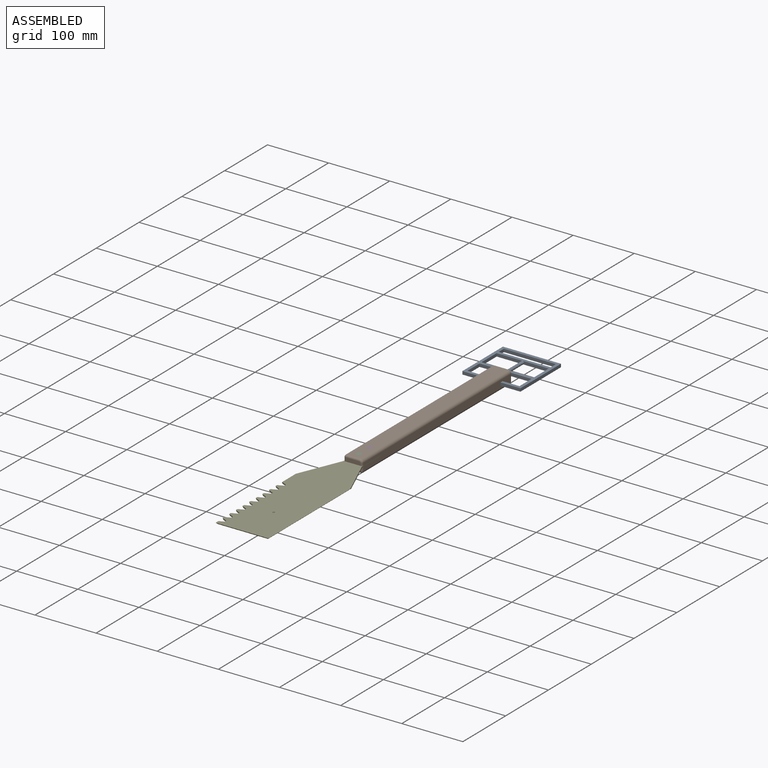
[diagram: assembled view]
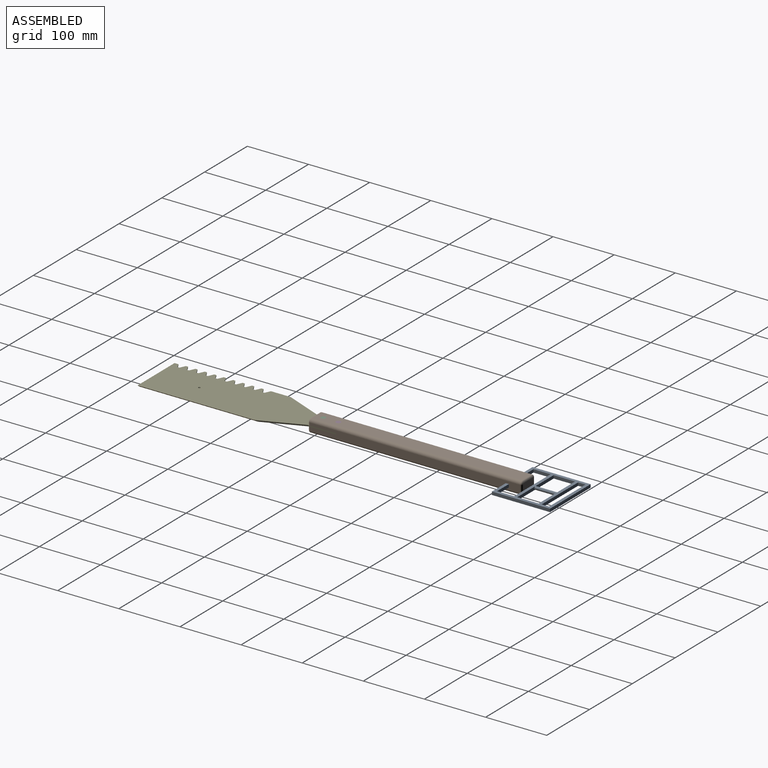
[diagram: assembled view, second angle]
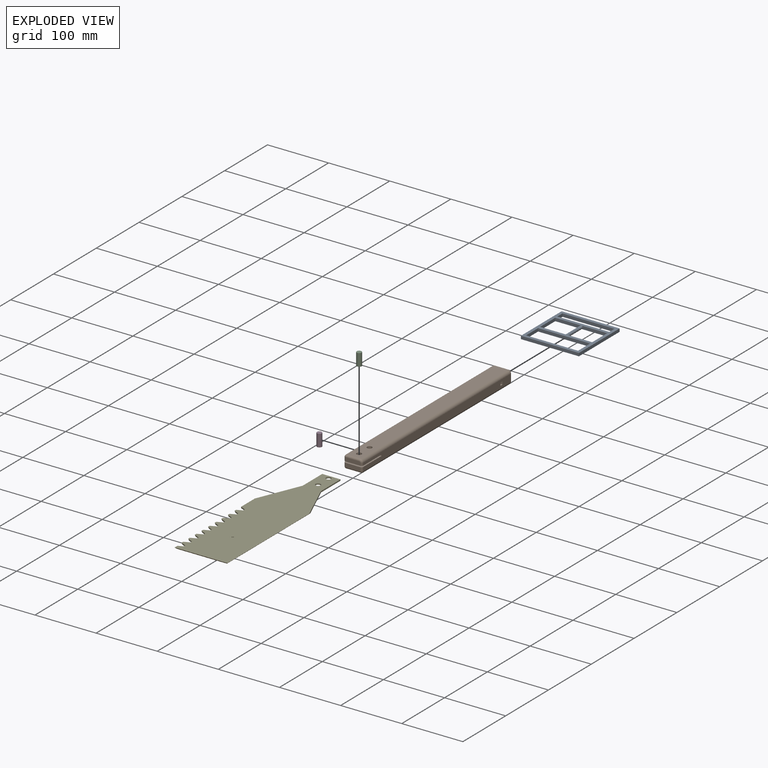
[diagram: exploded view]
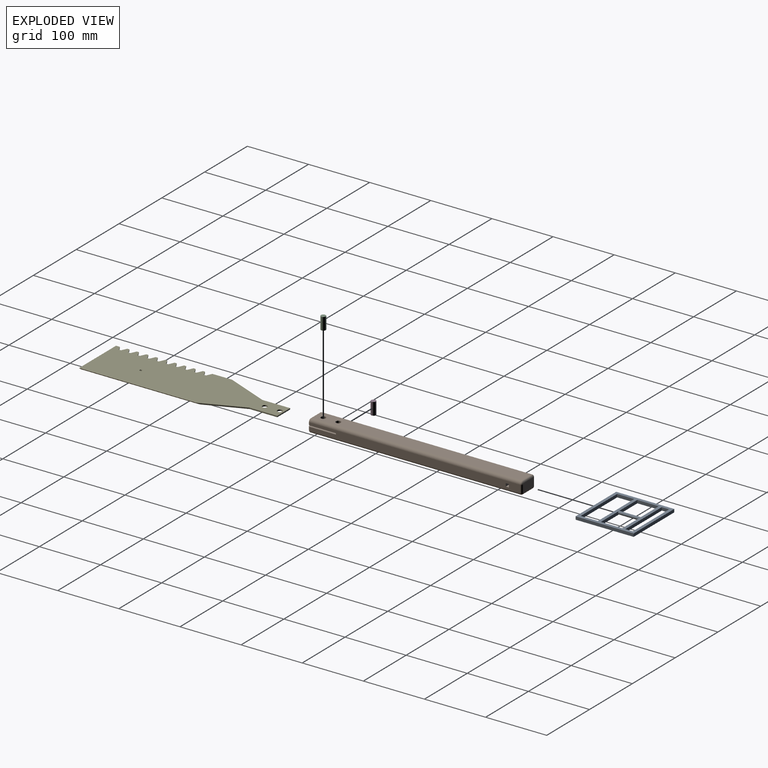
[diagram: exploded view, second angle]
ASSEMBLY  parts=5 mates=7
PART A: 55 faces, bbox 95x95x5 mm
  f0: plane 5x4mm, normal (0,0,-1), area 13.8mm2, adj f22,f23,f24,f25,f46,f47,f48,f49
  f1: plane 95x95mm, normal (0,0,-1), area 2610mm2, adj f2,f3,f4,f5,f6,f7,f8,f9
  f2: plane 28x5mm, normal (1,0,0), area 140mm2, adj f1,f10,f15,f21
  f3: plane 28x5mm, normal (-1,0,0), area 140mm2, adj f1,f10,f15,f21
  f4: plane 42.5x5mm, normal (0,-1,0), area 202.7mm2, adj f1,f5,f10,f18
  f5: plane 35x5mm, normal (1,0,0), area 175mm2, adj f1,f4,f10,f19
  f6: plane 12x5mm, normal (-1,0,0), area 60mm2, adj f1,f8,f10,f16
  f7: plane 12x5mm, normal (1,0,0), area 60mm2, adj f1,f8,f10,f16
  f8: plane 85x5mm, normal (0,-1,0), area 425mm2, adj f1,f6,f7,f10
  f9: plane 95x5mm, normal (1,0,0), area 475mm2, adj f1,f10,f12,f14
  f10: plane 95x95mm, normal (0,0,1), area 2650mm2, adj f2,f3,f4,f5,f6,f7,f8,f9
  f11: plane 35x5mm, normal (-1,0,0), area 175mm2, adj f1,f10,f17,f20
  f12: plane 95x5mm, normal (0,1,0), area 475mm2, adj f1,f9,f10,f13
  f13: plane 95x5mm, normal (-1,0,0), area 475mm2, adj f1,f10,f12,f14
  f14: plane 95x5mm, normal (0,-1,0), area 475mm2, adj f1,f9,f10,f13
  f15: plane 85x5mm, normal (0,1,0), area 425mm2, adj f1,f2,f3,f10
  f16: plane 85x5mm, normal (0,1,0), area 425mm2, adj f1,f6,f7,f10
  f17: plane 42.5x5mm, normal (0,-1,0), area 202.7mm2, adj f1,f10,f11,f18
  f18: cylinder r=2.5mm len=35mm, axis (0,1,0), area 549.8mm2, adj f4,f17,f19,f20
  f19: plane 42.5x5mm, normal (0,1,0), area 202.7mm2, adj f1,f5,f10,f18
  f20: plane 42.5x5mm, normal (0,1,0), area 202.7mm2, adj f1,f10,f11,f18
  f21: plane 85x5mm, normal (0,-1,0), area 425mm2, adj f1,f2,f3,f10
  f22: plane 5x0.3mm, normal (0,1,0), area 1.5mm2, adj f0,f1,f23,f25
  f23: plane 4x0.3mm, normal (1,0,0), area 1.2mm2, adj f0,f1,f22,f24
  f24: plane 5x0.3mm, normal (0,-1,0), area 1.5mm2, adj f0,f1,f23,f25
  f25: plane 4x0.3mm, normal (-1,0,0), area 1.2mm2, adj f0,f1,f22,f24
  f26: plane 5x0.3mm, normal (0,1,0), area 1.5mm2, adj f1,f27,f29,f30
  f27: plane 4x0.3mm, normal (1,0,0), area 1.2mm2, adj f1,f26,f28,f30
  f28: plane 5x0.3mm, normal (0,-1,0), area 1.5mm2, adj f1,f27,f29,f30
  f29: plane 4x0.3mm, normal (-1,0,0), area 1.2mm2, adj f1,f26,f28,f30
  f30: plane 5x4mm, normal (0,0,-1), area 13.8mm2, adj f26,f27,f28,f29,f31,f32,f33,f38
  f31: plane 2.5x0.3mm, normal (-1,0,0), area 0.8mm2, adj f30,f32,f38,f39
  f32: plane 2.5x0.3mm, normal (0,1,0), area 0.8mm2, adj f30,f31,f33,f39
  f33: plane 2.5x0.3mm, normal (1,0,0), area 0.8mm2, adj f30,f32,f38,f39
  f34: plane 2x0.3mm, normal (0,-1,0), area 0.6mm2, adj f35,f37,f39,f42
  f35: plane 2x0.3mm, normal (1,0,0), area 0.6mm2, adj f34,f36,f39,f42
  f36: plane 2x0.3mm, normal (0,1,0), area 0.6mm2, adj f35,f37,f39,f42
  f37: plane 2x0.3mm, normal (-1,0,0), area 0.6mm2, adj f34,f36,f39,f42
  f38: plane 2.5x0.3mm, normal (0,-1,0), area 0.8mm2, adj f30,f31,f33,f39
  f39: plane 2.5x2.5mm, normal (0,0,-1), area 2.2mm2, adj f31,f32,f33,f34,f35,f36,f37,f38
  f40: plane 1.6x1.6mm, normal (0,0,-1), area 2mm2, adj f41
  f41: cylinder r=0.8mm len=1.6mm, axis (0,0,1), area 1.5mm2, adj f40,f42
  f42: plane 2x2mm, normal (0,0,-1), area 2mm2, adj f34,f35,f36,f37,f41
  f43: plane 2x0.3mm, normal (-1,0,0), area 0.6mm2, adj f44,f50,f51,f54
  f44: plane 2x0.3mm, normal (0,-1,0), area 0.6mm2, adj f43,f45,f51,f54
  f45: plane 2x0.3mm, normal (1,0,0), area 0.6mm2, adj f44,f50,f51,f54
  f46: plane 2.5x0.3mm, normal (0,1,0), area 0.7mm2, adj f0,f47,f49,f51
  f47: plane 2.5x0.3mm, normal (1,0,0), area 0.8mm2, adj f0,f46,f48,f51
  f48: plane 2.5x0.3mm, normal (0,-1,0), area 0.7mm2, adj f0,f47,f49,f51
  f49: plane 2.5x0.3mm, normal (-1,0,0), area 0.8mm2, adj f0,f46,f48,f51
  f50: plane 2x0.3mm, normal (0,1,0), area 0.6mm2, adj f43,f45,f51,f54
  f51: plane 2.5x2.5mm, normal (0,0,-1), area 2.2mm2, adj f43,f44,f45,f46,f47,f48,f49,f50
  f52: plane 1.6x1.6mm, normal (0,0,-1), area 2mm2, adj f53
  f53: cylinder r=0.8mm len=1.6mm, axis (0,0,1), area 1.5mm2, adj f52,f54
  f54: plane 2x2mm, normal (0,0,-1), area 2mm2, adj f43,f44,f45,f50,f53
PART B: 40 faces, bbox 30x350x20.2 mm
  f0: plane 344x14.2mm, normal (-1,0,0), area 4774.8mm2, adj f3,f10,f17,f18,f19,f29,f30,f31
  f1: plane 344x12.2mm, normal (1,0,0), area 4086.8mm2, adj f4,f9,f15,f23,f28,f29,f30,f31
  f2: plane 24x6.1mm, normal (0,-1,0), area 145.5mm2, adj f3,f4,f25,f27,f30
  f3: cylinder r=3mm len=6.1mm, axis (0,0,-1), area 28.7mm2, adj f0,f2,f22,f30
  f4: cylinder r=3mm len=4.1mm, axis (0,0,1), area 19.3mm2, adj f1,f2,f27,f30
  f5: plane 344x22mm, normal (0,0,1), area 7467.5mm2, adj f9,f11,f19,f25,f38,f39
  f6: plane 344x24mm, normal (0,0,-1), area 8155.5mm2, adj f16,f17,f23,f24,f36,f37
  f7: plane 24x14.2mm, normal (0,1,0), area 339.9mm2, adj f10,f11,f12,f15,f16
  f8: plane 24x6.1mm, normal (0,-1,0), area 146.4mm2, adj f18,f24,f28,f31
  f9: cylinder r=5mm len=344mm, axis (0,1,0), area 2701.8mm2, adj f1,f5,f12,f27
  f10: cylinder r=3mm len=14.2mm, axis (0,0,1), area 66.9mm2, adj f0,f7,f13,f14
  f11: cylinder r=3mm len=22mm, axis (1,0,0), area 103.7mm2, adj f5,f7,f12,f14
  f12: torus R=2mm, axis (0,-1,0), area 28.9mm2, adj f7,f9,f11,f15
  f13: sphere r=3mm, area 14.1mm2, adj f10,f16,f17
  f14: sphere r=3mm, area 14.1mm2, adj f10,f11,f19
  f15: cylinder r=3mm len=12.2mm, axis (0,0,-1), area 57.5mm2, adj f1,f7,f12,f20
  f16: cylinder r=3mm len=24mm, axis (-1,0,0), area 113.1mm2, adj f6,f7,f13,f20
  f17: cylinder r=3mm len=344mm, axis (0,1,0), area 1621.1mm2, adj f0,f6,f13,f21
  f18: cylinder r=3mm len=6.1mm, axis (0,0,-1), area 28.7mm2, adj f0,f8,f21,f31
  f19: cylinder r=3mm len=344mm, axis (0,-1,0), area 1621.1mm2, adj f0,f5,f14,f22
  f20: sphere r=3mm, area 14.1mm2, adj f15,f16,f23
  f21: sphere r=3mm, area 14.1mm2, adj f17,f18,f24
  f22: sphere r=3mm, area 14.1mm2, adj f3,f19,f25
  f23: cylinder r=3mm len=344mm, axis (0,-1,0), area 1621.1mm2, adj f1,f6,f20,f26
  f24: cylinder r=3mm len=24mm, axis (1,0,0), area 113.1mm2, adj f6,f8,f21,f26
  f25: cylinder r=3mm len=22mm, axis (-1,0,0), area 103.7mm2, adj f2,f5,f22,f27
  f26: sphere r=3mm, area 14.1mm2, adj f23,f24,f28
  f27: torus R=2mm, axis (0,-1,0), area 28.9mm2, adj f2,f4,f9,f25
  f28: cylinder r=3mm len=6.1mm, axis (0,0,1), area 28.7mm2, adj f1,f8,f26,f31
  f29: plane 30x2mm, normal (0,-1,0), area 60mm2, adj f0,f1,f30,f31
  f30: plane 45.5x30mm, normal (0,0,-1), area 1260.6mm2, adj f0,f1,f2,f3,f4,f29,f38,f39
  f31: plane 45.5x30mm, normal (0,0,1), area 1260.6mm2, adj f0,f1,f8,f18,f28,f29,f36,f37
  f32: plane 30x5mm, normal (0,0,-1), area 150mm2, adj f0,f1,f33,f35
  f33: plane 30x5mm, normal (0,1,0), area 150mm2, adj f0,f1,f32,f34
  f34: plane 30x5mm, normal (0,0,1), area 150mm2, adj f0,f1,f33,f35
  f35: plane 30x5mm, normal (0,-1,0), area 150mm2, adj f0,f1,f32,f34
  f36: cylinder r=4mm len=9.1mm, axis (0,0,1), area 228.7mm2, adj f6,f31
  f37: cylinder r=4mm len=9.1mm, axis (0,0,1), area 228.7mm2, adj f6,f31
  f38: cylinder r=4mm len=9.1mm, axis (0,0,1), area 228.7mm2, adj f5,f30
  f39: cylinder r=4mm len=9.1mm, axis (0,0,1), area 228.7mm2, adj f5,f30
PART C: 3 faces, bbox 8x20.2x8 mm
  f0: cylinder r=4mm len=20.2mm, axis (0,-1,0), area 507.7mm2, adj f1,f2
  f1: plane 8x8mm, normal (0,1,0), area 50.3mm2, adj f0
  f2: plane 8x8mm, normal (0,-1,0), area 50.3mm2, adj f0
PART D: same geometry as C
PART E: 139 faces, bbox 87.5x2x304.6 mm
  f0: cylinder r=0.75mm len=2mm, axis (0,-1,0), area 9.4mm2, adj f1,f2,f3,f138
  f1: plane 1.5x1.5mm, normal (0,1,0), area 1.8mm2, adj f0
  f2: plane 1.5x1.5mm, normal (0,-1,0), area 1.8mm2, adj f0
  f3: cylinder r=0.1mm len=0.89mm, axis (0,0,-1), area 0.6mm2, adj f0,f121
  f4: plane 0.8x0.4mm, normal (0,-1,0), area 0.2mm2, adj f129,f130,f131,f132,f133,f134,f135,f136
  f5: plane 304.65x87.5mm, normal (0,1,0), area 21241.6mm2, adj f12,f13,f14,f15,f16,f17,f18,f19
  f6: plane 3.86x3.86mm, normal (0,-1,0), area 3.5mm2, adj f113,f114,f115,f116,f117,f118,f119,f120
  f7: plane 7.7x0.2mm, normal (0,0,1), area 1.5mm2, adj f9,f70,f74,f105
  f8: plane 4x0.2mm, normal (0,0,1), area 0.8mm2, adj f10,f70,f93,f95
  f9: plane 21x20.5mm, normal (0,-1,0), area 360.5mm2, adj f7,f71,f72,f73,f74,f96,f97,f98
  f10: plane 7.9x4mm, normal (0,-1,0), area 31.3mm2, adj f8,f93,f94,f95,f129,f130,f131,f132
  f11: plane 302.65x85.5mm, normal (0,-1,0), area 18869.3mm2, adj f12,f13,f14,f15,f16,f17,f18,f19
  f12: plane 31.98x2mm, normal (-1,0,0), area 64mm2, adj f5,f11,f15,f18
  f13: plane 45.5x2mm, normal (1,0,0), area 91mm2, adj f5,f11,f14,f17
  f14: plane 67.75x28.25mm, normal (0.92,0,-0.38), area 141.6mm2, adj f5,f11,f13,f50
  f15: plane 70.15x29.25mm, normal (-0.92,0,-0.38), area 152mm2, adj f5,f11,f12,f16
  f16: plane 45.5x2mm, normal (-1,0,0), area 91mm2, adj f5,f11,f15,f17
  f17: plane 30x2mm, normal (0,0,-1), area 60mm2, adj f5,f11,f13,f16
  f18: plane 9.06x4.23mm, normal (-0.42,0,0.91), area 20mm2, adj f5,f11,f12,f20
  f19: plane 9.06x4.23mm, normal (-0.42,0,-0.91), area 17.8mm2, adj f5,f11,f20,f51
  f20: plane 3.5x2mm, normal (-1,0,0), area 7mm2, adj f5,f11,f18,f19
  f21: plane 9.06x4.23mm, normal (-0.42,0,0.91), area 17.8mm2, adj f5,f11,f23,f51
  f22: plane 9.06x4.23mm, normal (-0.42,0,-0.91), area 17.8mm2, adj f5,f11,f23,f52
  f23: plane 3.5x2mm, normal (-1,0,0), area 7mm2, adj f5,f11,f21,f22
  f24: plane 9.06x4.23mm, normal (-0.42,0,0.91), area 17.8mm2, adj f5,f11,f26,f52
  f25: plane 9.06x4.23mm, normal (-0.42,0,-0.91), area 17.8mm2, adj f5,f11,f26,f53
  f26: plane 3.5x2mm, normal (-1,0,0), area 7mm2, adj f5,f11,f24,f25
  f27: plane 9.06x4.23mm, normal (-0.42,0,0.91), area 17.8mm2, adj f5,f11,f29,f53
  f28: plane 9.06x4.23mm, normal (-0.42,0,-0.91), area 17.8mm2, adj f5,f11,f29,f54
  f29: plane 3.5x2mm, normal (-1,0,0), area 7mm2, adj f5,f11,f27,f28
  f30: plane 9.06x4.23mm, normal (-0.42,0,0.91), area 17.8mm2, adj f5,f11,f32,f54
  f31: plane 9.06x4.23mm, normal (-0.42,0,-0.91), area 17.8mm2, adj f5,f11,f32,f55
  f32: plane 3.5x2mm, normal (-1,0,0), area 7mm2, adj f5,f11,f30,f31
  f33: plane 9.06x4.23mm, normal (-0.42,0,0.91), area 17.8mm2, adj f5,f11,f35,f55
  f34: plane 9.06x4.23mm, normal (-0.42,0,-0.91), area 17.8mm2, adj f5,f11,f35,f56
  f35: plane 3.5x2mm, normal (-1,0,0), area 7mm2, adj f5,f11,f33,f34
  f36: plane 9.06x4.23mm, normal (-0.42,0,0.91), area 17.8mm2, adj f5,f11,f38,f56
  f37: plane 9.06x4.23mm, normal (-0.42,0,-0.91), area 17.8mm2, adj f5,f11,f38,f57
  f38: plane 3.5x2mm, normal (-1,0,0), area 7mm2, adj f5,f11,f36,f37
  f39: plane 9.06x4.23mm, normal (-0.42,0,0.91), area 17.8mm2, adj f5,f11,f41,f57
  f40: plane 9.06x4.23mm, normal (-0.42,0,-0.91), area 17.8mm2, adj f5,f11,f41,f58
  f41: plane 3.5x2mm, normal (-1,0,0), area 7mm2, adj f5,f11,f39,f40
  f42: plane 9.06x4.23mm, normal (-0.42,0,0.91), area 17.8mm2, adj f5,f11,f44,f58
  f43: plane 9.06x4.23mm, normal (-0.42,0,-0.91), area 17.8mm2, adj f5,f11,f44,f59
  f44: plane 3.5x2mm, normal (-1,0,0), area 7mm2, adj f5,f11,f42,f43
  f45: plane 9.06x4.23mm, normal (-0.42,0,0.91), area 17.8mm2, adj f5,f11,f47,f59
  f46: plane 8.06x3.76mm, normal (-0.42,0,-0.91), area 15.6mm2, adj f5,f11,f47,f48
  f47: plane 3.5x2mm, normal (-1,0,0), area 7mm2, adj f5,f11,f45,f46
  f48: plane 7.4x2mm, normal (-0.71,-0.71,0), area 16.8mm2, adj f5,f11,f46,f49
  f49: plane 86.5x2mm, normal (0,-0.71,0.71), area 239mm2, adj f5,f11,f48,f50
  f50: plane 196.19x2mm, normal (0.71,-0.71,0), area 545.3mm2, adj f5,f11,f14,f49
  f51: plane 5.37x2mm, normal (-0.71,-0.71,0), area 12.5mm2, adj f5,f11,f19,f21
  f52: plane 5.37x2mm, normal (-0.71,-0.71,0), area 12.5mm2, adj f5,f11,f22,f24
  f53: plane 5.37x2mm, normal (-0.71,-0.71,0), area 12.5mm2, adj f5,f11,f25,f27
  f54: plane 5.37x2mm, normal (-0.71,-0.71,0), area 12.5mm2, adj f5,f11,f28,f30
  f55: plane 5.37x2mm, normal (-0.71,-0.71,0), area 12.5mm2, adj f5,f11,f31,f33
  f56: plane 5.37x2mm, normal (-0.71,-0.71,0), area 12.5mm2, adj f5,f11,f34,f36
  f57: plane 5.37x2mm, normal (-0.71,-0.71,0), area 12.5mm2, adj f5,f11,f37,f39
  f58: plane 5.37x2mm, normal (-0.71,-0.71,0), area 12.5mm2, adj f5,f11,f40,f42
  f59: plane 5.37x2mm, normal (-0.71,-0.71,0), area 12.5mm2, adj f5,f11,f43,f45
  f60: cylinder r=4mm len=8mm, axis (0,-1,0), area 50.3mm2, adj f5,f11
  f61: cylinder r=4mm len=8mm, axis (0,-1,0), area 50.3mm2, adj f5,f11
  f62: plane 25x0.2mm, normal (1,0,0), area 5mm2, adj f63,f67,f69,f70
  f63: plane 27x0.2mm, normal (0,0,-1), area 5.4mm2, adj f62,f64,f69,f70
  f64: plane 25x0.2mm, normal (-1,0,0), area 5mm2, adj f63,f65,f69,f70
  f65: plane 2.87x2mm, normal (-0.82,0,-0.57), area 0.7mm2, adj f64,f66,f69,f70
  f66: plane 31x0.2mm, normal (0,0,1), area 6.2mm2, adj f65,f67,f69,f70
  f67: plane 2.87x2mm, normal (0.82,0,-0.57), area 0.7mm2, adj f62,f66,f69,f70
  f68: cylinder r=23.5mm len=47mm, axis (0,-1,0), area 29.5mm2, adj f11,f69
  f69: plane 47x47mm, normal (0,-1,0), area 976.6mm2, adj f62,f63,f64,f65,f66,f67,f68
  f70: plane 31x27.87mm, normal (0,-1,0), area 351.8mm2, adj f7,f8,f62,f63,f64,f65,f66,f67
  f71: plane 7.7x0.2mm, normal (0,0,1), area 1.5mm2, adj f9,f70,f72,f96
  f72: plane 20.5x0.2mm, normal (-1,0,0), area 4.1mm2, adj f9,f70,f71,f73
  f73: plane 21x0.2mm, normal (0,0,-1), area 4.2mm2, adj f9,f70,f72,f74
  f74: plane 20.5x0.2mm, normal (1,0,0), area 4.1mm2, adj f7,f9,f70,f73
  f75: plane 1.1x0.2mm, normal (-1,0,0), area 0.2mm2, adj f70,f76,f106,f112
  f76: plane 0.3x0.2mm, normal (0,0,1), area 0.1mm2, adj f70,f75,f77,f112
  f77: plane 1.1x0.2mm, normal (1,0,0), area 0.2mm2, adj f70,f76,f106,f112
  f78: plane 0.3x0.2mm, normal (0,0,1), area 0.1mm2, adj f70,f79,f100,f111
  f79: plane 1.1x0.2mm, normal (1,0,0), area 0.2mm2, adj f70,f78,f80,f111
  f80: plane 0.3x0.2mm, normal (0,0,-1), area 0.1mm2, adj f70,f79,f100,f111
  f81: plane 1.1x0.2mm, normal (1,0,0), area 0.2mm2, adj f70,f82,f101,f110
  f82: plane 0.3x0.2mm, normal (0,0,-1), area 0.1mm2, adj f70,f81,f83,f110
  f83: plane 1.1x0.2mm, normal (-1,0,0), area 0.2mm2, adj f70,f82,f101,f110
  f84: plane 1.1x0.2mm, normal (1,0,0), area 0.2mm2, adj f70,f85,f102,f109
  f85: plane 0.3x0.2mm, normal (0,0,-1), area 0.1mm2, adj f70,f84,f86,f109
  f86: plane 1.1x0.2mm, normal (-1,0,0), area 0.2mm2, adj f70,f85,f102,f109
  f87: plane 1.1x0.2mm, normal (1,0,0), area 0.2mm2, adj f70,f88,f103,f108
  f88: plane 0.3x0.2mm, normal (0,0,-1), area 0.1mm2, adj f70,f87,f89,f108
  f89: plane 1.1x0.2mm, normal (-1,0,0), area 0.2mm2, adj f70,f88,f103,f108
  f90: plane 1.1x0.2mm, normal (1,0,0), area 0.2mm2, adj f70,f91,f104,f107
  f91: plane 0.3x0.2mm, normal (0,0,-1), area 0.1mm2, adj f70,f90,f92,f107
  f92: plane 1.1x0.2mm, normal (-1,0,0), area 0.2mm2, adj f70,f91,f104,f107
  f93: plane 7.9x0.2mm, normal (1,0,0), area 1.6mm2, adj f8,f10,f70,f94
  f94: plane 4x0.2mm, normal (0,0,-1), area 0.8mm2, adj f10,f70,f93,f95
  f95: plane 7.9x0.2mm, normal (-1,0,0), area 1.6mm2, adj f8,f10,f70,f94
  f96: plane 7.9x0.2mm, normal (1,0,0), area 1.6mm2, adj f9,f70,f71,f97
  f97: plane 1.83x1.7mm, normal (0.73,0,-0.68), area 0.5mm2, adj f9,f70,f96,f98
  f98: plane 9x0.2mm, normal (0,0,1), area 1.8mm2, adj f9,f70,f97,f99
  f99: plane 1.83x1.7mm, normal (-0.73,0,-0.68), area 0.5mm2, adj f9,f70,f98,f105
  f100: plane 1.1x0.2mm, normal (-1,0,0), area 0.2mm2, adj f70,f78,f80,f111
  f101: plane 0.3x0.2mm, normal (0,0,1), area 0.1mm2, adj f70,f81,f83,f110
  f102: plane 0.3x0.2mm, normal (0,0,1), area 0.1mm2, adj f70,f84,f86,f109
  f103: plane 0.3x0.2mm, normal (0,0,1), area 0.1mm2, adj f70,f87,f89,f108
  f104: plane 0.3x0.2mm, normal (0,0,1), area 0.1mm2, adj f70,f90,f92,f107
  f105: plane 7.9x0.2mm, normal (-1,0,0), area 1.6mm2, adj f7,f9,f70,f99
  f106: plane 0.3x0.2mm, normal (0,0,-1), area 0.1mm2, adj f70,f75,f77,f112
  f107: plane 1.1x0.3mm, normal (0,-1,0), area 0.3mm2, adj f90,f91,f92,f104
  f108: plane 1.1x0.3mm, normal (0,-1,0), area 0.3mm2, adj f87,f88,f89,f103
  f109: plane 1.1x0.3mm, normal (0,-1,0), area 0.3mm2, adj f84,f85,f86,f102
  f110: plane 1.1x0.3mm, normal (0,-1,0), area 0.3mm2, adj f81,f82,f83,f101
  f111: plane 1.1x0.3mm, normal (0,-1,0), area 0.3mm2, adj f78,f79,f80,f100
  f112: plane 1.1x0.3mm, normal (0,-1,0), area 0.3mm2, adj f75,f76,f77,f106
  f113: plane 1.13x1.13mm, normal (0.71,0,-0.71), area 0.3mm2, adj f6,f9,f114,f120
  f114: plane 1.6x0.2mm, normal (1,0,0), area 0.3mm2, adj f6,f9,f113,f115
  f115: plane 1.13x1.13mm, normal (0.71,0,0.71), area 0.3mm2, adj f6,f9,f114,f116
  f116: plane 1.6x0.2mm, normal (0,0,1), area 0.3mm2, adj f6,f9,f115,f117
  f117: plane 1.13x1.13mm, normal (-0.71,0,0.71), area 0.3mm2, adj f6,f9,f116,f118
  f118: plane 1.6x0.2mm, normal (-1,0,0), area 0.3mm2, adj f6,f9,f117,f119
  f119: plane 1.13x1.13mm, normal (-0.71,0,-0.71), area 0.3mm2, adj f6,f9,f118,f120
  f120: plane 1.6x0.2mm, normal (0,0,-1), area 0.3mm2, adj f6,f9,f113,f119
  f121: plane 2x1.35mm, normal (0,0,1), area 2.7mm2, adj f3,f5,f6,f122,f128
  f122: plane 2x0.96mm, normal (0.71,0,0.71), area 2.7mm2, adj f5,f6,f121,f123
  f123: plane 2x1.35mm, normal (1,0,0), area 2.7mm2, adj f5,f6,f122,f124
  f124: plane 2x0.96mm, normal (0.71,0,-0.71), area 2.7mm2, adj f5,f6,f123,f125
  f125: plane 2x1.35mm, normal (0,0,-1), area 2.7mm2, adj f5,f6,f124,f126,f138
  f126: plane 2x0.96mm, normal (-0.71,0,-0.71), area 2.7mm2, adj f5,f6,f125,f127
  f127: plane 2x1.35mm, normal (-1,0,0), area 2.7mm2, adj f5,f6,f126,f128
  f128: plane 2x0.96mm, normal (-0.71,0,0.71), area 2.7mm2, adj f5,f6,f121,f127
  f129: plane 0.4x0.2mm, normal (0,0,1), area 0.1mm2, adj f4,f10,f130,f132
  f130: plane 0.8x0.2mm, normal (-1,0,0), area 0.2mm2, adj f4,f10,f129,f131
  f131: plane 0.4x0.2mm, normal (0,0,-1), area 0.1mm2, adj f4,f10,f130,f132
  f132: plane 0.8x0.2mm, normal (1,0,0), area 0.2mm2, adj f4,f10,f129,f131
  f133: plane 0.24x0.1mm, normal (0,0,-1), area 0mm2, adj f4,f134,f136,f137
  f134: plane 0.64x0.1mm, normal (1,0,0), area 0.1mm2, adj f4,f133,f135,f137
  f135: plane 0.24x0.1mm, normal (0,0,1), area 0mm2, adj f4,f134,f136,f137
  f136: plane 0.64x0.1mm, normal (-1,0,0), area 0.1mm2, adj f4,f133,f135,f137
  f137: plane 0.64x0.24mm, normal (0,-1,0), area 0.2mm2, adj f133,f134,f135,f136
  f138: cylinder r=0.1mm len=0.89mm, axis (0,0,1), area 0.6mm2, adj f0,f125
PLACE A t=(45,328.5,3.05)mm
PLACE B t=(0,0,4.05)mm
PLACE C rot(axis=(-1,0,0),90deg) t=(0,14.5,14.15)mm
PLACE D rot(axis=(-1,0,0),90deg) t=(0,39,14.15)mm
PLACE E rot(axis=(1,0,0),90deg) t=(15,45.5,3.05)mm
MATE cylindrical C.f0 <-> E.f60  axis (0,0,1) through (0,14.5,4.05)mm
MATE fastened D.f0 <-> E.f61  axis (0,0,1) through (0,39,4.05)mm
MATE cylindrical E.f61 <-> B.f36  axis (0,0,-1) through (0,39,4.05)mm
MATE planar A.f18 <-> B.f33  axis (0,-1,0) through (0,323.5,3.05)mm
MATE planar E.f5 <-> B.f30  axis (0,0,1) through (0.96,-128.83,5.05)mm
MATE fastened C.f0 <-> E.f60  axis (0,0,1) through (0,14.5,4.05)mm
MATE cylindrical E.f60 <-> B.f37  axis (0,0,-1) through (0,14.5,4.05)mm
